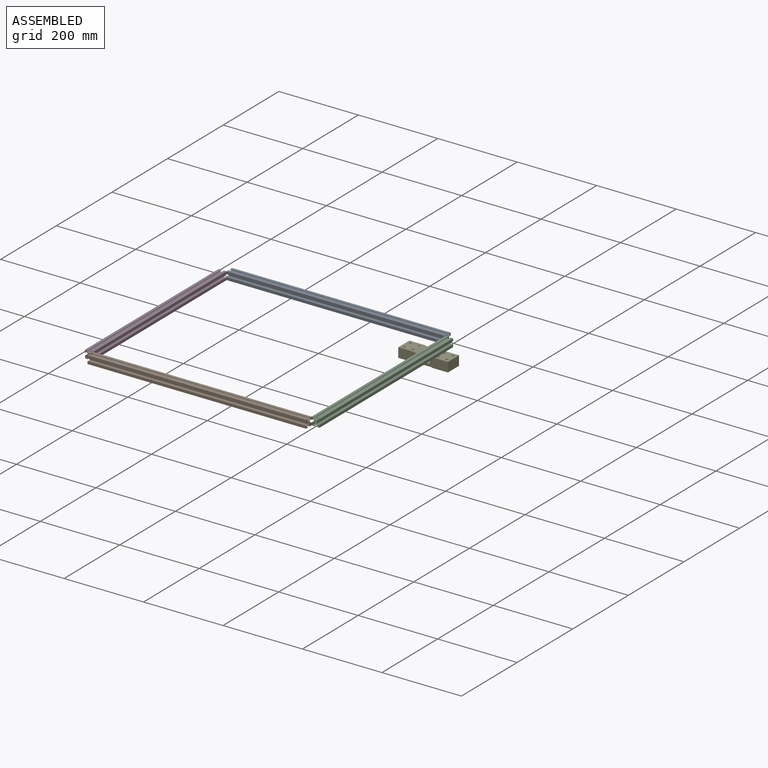
[diagram: assembled view]
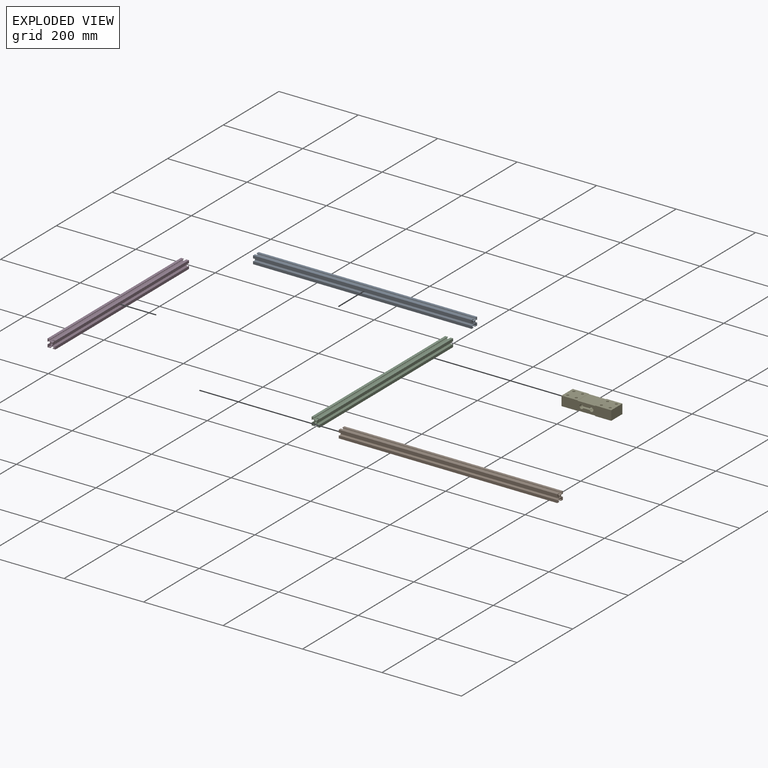
[diagram: exploded view]
GUIDED TOUR — MATED ASSEMBLY (Onshape document 4f19ccbfeccf9da13fca764b, AutoMate assembly 4f19ccbfeccf9da13fca764b_7826bdbd775224027a522f26_8079e58ffe7ddc799d03f3a0_default)

This assembly has 5 components, labeled P0..P4 below (a component is one placed occurrence of a part; the same part can appear more than once), held together by 3 mates. A mate is a constraint between two components; its type names the relative motion it leaves free:
  FASTENED — locks the two components together rigidly (no relative motion).
Axis/direction vectors are unit vectors and 'through' points are millimeter coordinates, both in the assembly's world frame.

MATES
  1. FASTENED "Fastened 3": P0 <-> P2, direction (1.000, 0.000, 0.000) through (66.45, 474.93, -6.66) mm
  2. FASTENED "Fastened 1": P1 <-> P3, direction (1.000, 0.000, 0.000) through (-483.55, -5.07, -6.66) mm
  3. FASTENED "Fastened 2": P3 <-> P0, direction (0.000, -1.000, 0.000) through (-483.55, 474.93, -6.66) mm

ASSEMBLY ORDER
  1. P2 — the base component [order verified]
  2. P1 [order verified]
  3. P3 [order verified]
  4. P0 [order verified]
  5. P4 [order verified]
Order-tag legend:
  [order verified] — this step's position reverses a verified removal order: the component was checked to insert without passing through the ones already placed.

Of the 5 components, 5 carry the full construction recipe — the FeatureScript program that regenerates the part's solid from scratch; the rest are supplied as boundary geometry only.
Each toured component is shown spotlighted twice — in the assembled view, then in the exploded view, where a leader line traces a displaced component back to its assembled socket (saturated green if recipe-attached, orange if geometry-only; every other component desaturated gray) — followed by its recipe or geometry summary and the mates that hold it.
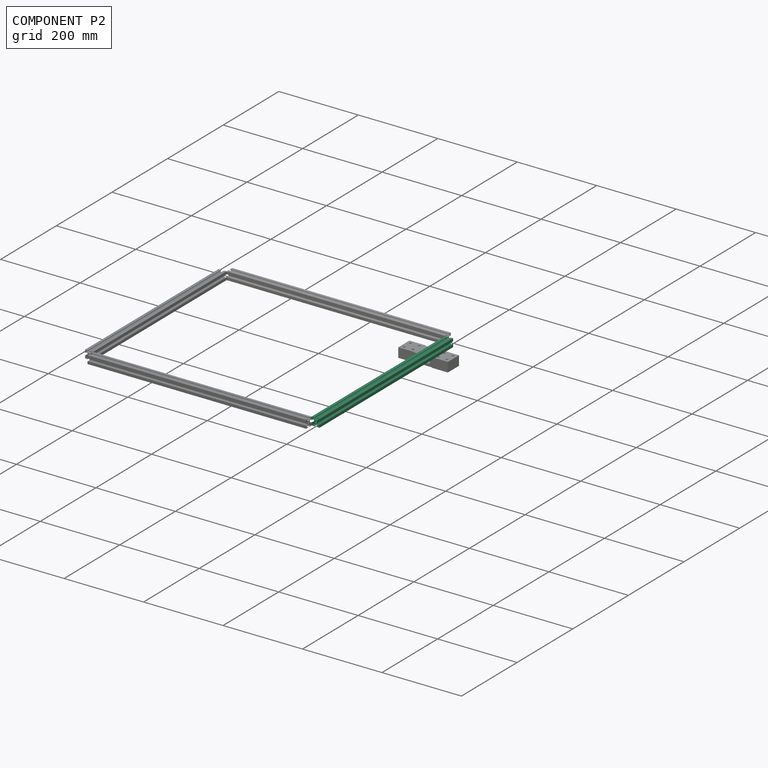
[diagram: component P2 — assembled]
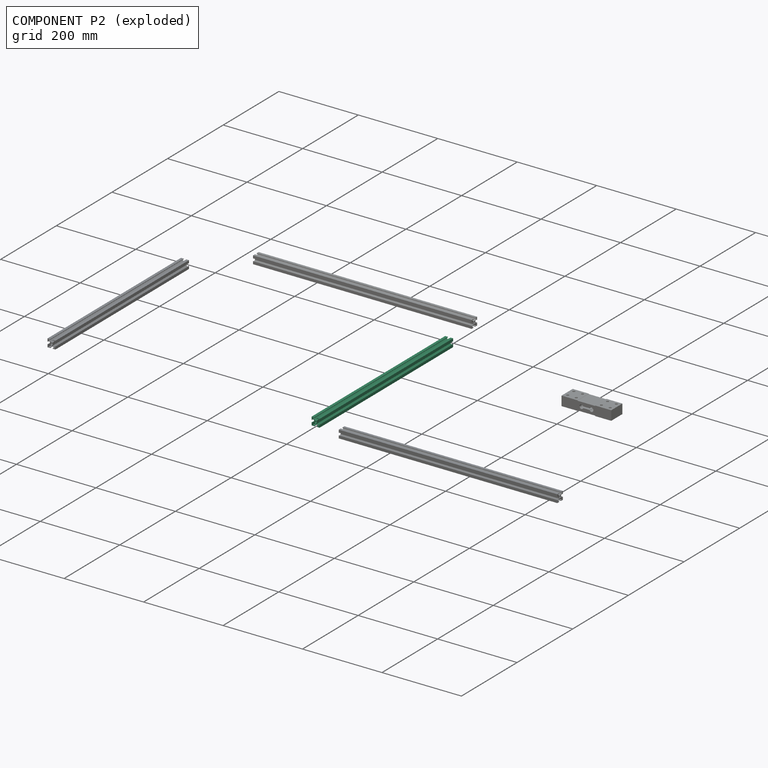
[diagram: component P2 — exploded]
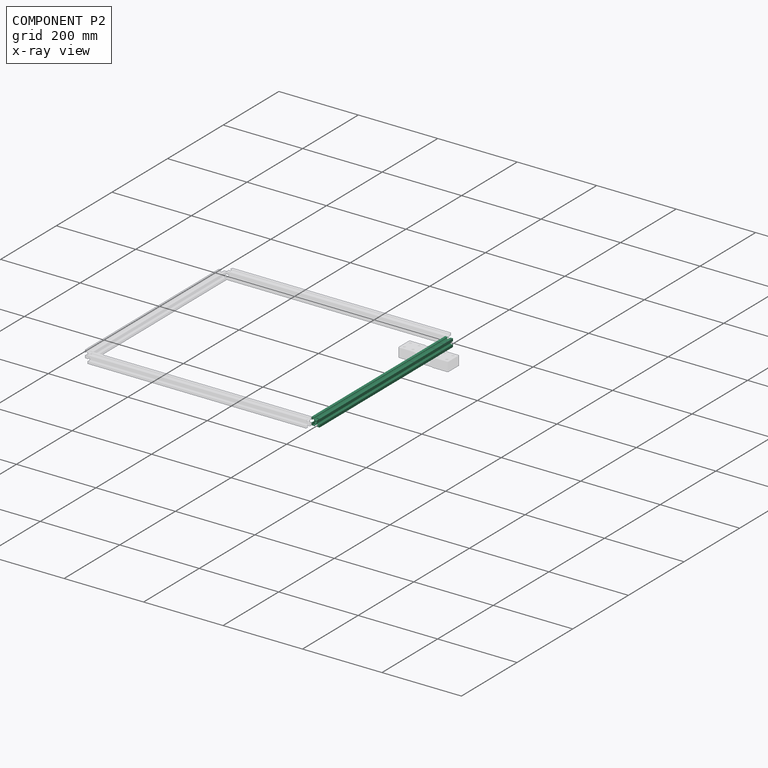
[diagram: component P2 — x-ray view]
COMPONENT P2 — recipe-attached (CADFS 00677635, mesh-verified: the recipe's output STEP matches this component's geometry to below the mesh-comparison resolution (tessellation chordal tolerance ~0.721 mm)).
Held by: FASTENED mate "Fastened 3" to P0.
Construction recipe (FeatureScript — the CAD program that rebuilds this solid; sketch coordinates are in the units given by the * unit suffixes, e.g. mm):

FeatureScript 1540;
import(path : "onshape/std/geometry.fs", version : "1540.0");
import(path : "onshape/std/common.fs", version : "1540.0");
const mm = millimeter;
const VERTEX = EntityType.VERTEX;
const EDGE = EntityType.EDGE;
const FACE = EntityType.FACE;
const BODY = EntityType.BODY;
function v(x, y){return vector(x, y);}
function OD(order){return orderDisambiguation(order);}
function OSD(set){return originalSetDisambiguation(set);}
function TD(topology){return topologyDisambiguation(topology);}
function TDD(query){return trueDependencyDisambiguation(query);}
function sQuery(a, b, c) {return sketchEntityQuery(a, b, c);}

annotation { "Feature Type Name" : "Feature", "Feature Type Description" : "" }
export const myFeature = defineFeature(function(context is Context, id is Id, definition is map)
    precondition{}
    {
        {
            var Q0;
            Q0=qCreatedBy(makeId("Top.planeOp"),FACE);
            var sketch = newSketch(context, id + "F0", { "sketchPlane" : qUnion([Q0])});
            skCircle(sketch, "E0", {"center": v(10, 10) * mm, "radius": 2.5 * mm});
            skLineSegment(sketch, "E1", {"start": v(0, 0) * mm, "end": v(10, 10) * mm, "construction": true});
            skLineSegment(sketch, "E2", {"start": v(1.4, 2.39) * mm, "end": v(1.4, 6.8) * mm});
            skLineSegment(sketch, "E3", {"start": v(1.4, 6.8) * mm, "end": v(0, 6.8) * mm});
            skLineSegment(sketch, "E4", {"start": v(0, 6.8) * mm, "end": v(0, 0) * mm});
            skLineSegment(sketch, "E5", {"start": v(7.49, 6.5) * mm, "end": v(2.39, 1.4) * mm});
            skLineSegment(sketch, "E6", {"start": v(2.39, 1.4) * mm, "end": v(6.8, 1.4) * mm});
            skLineSegment(sketch, "E7", {"start": v(6.8, 1.4) * mm, "end": v(6.8, 0) * mm});
            skLineSegment(sketch, "E8", {"start": v(6.8, 0) * mm, "end": v(0, 0) * mm});
            skLineSegment(sketch, "E9", {"start": v(10, 10) * mm, "end": v(20, 20) * mm, "construction": true});
            skLineSegment(sketch, "E10", {"start": v(10, 10) * mm, "end": v(0, 20) * mm, "construction": true});
            skLineSegment(sketch, "E11", {"start": v(10, 10) * mm, "end": v(20, 0) * mm, "construction": true});
            skLineSegment(sketch, "E12", {"start": v(1.4, 17.61) * mm, "end": v(6.5, 12.51) * mm});
            skLineSegment(sketch, "E13", {"start": v(1.4, 17.61) * mm, "end": v(1.4, 13.2) * mm});
            skLineSegment(sketch, "E14", {"start": v(1.4, 13.2) * mm, "end": v(0, 13.2) * mm});
            skLineSegment(sketch, "E15", {"start": v(0, 13.2) * mm, "end": v(0, 20) * mm});
            skLineSegment(sketch, "E16", {"start": v(7.49, 13.5) * mm, "end": v(2.39, 18.6) * mm});
            skLineSegment(sketch, "E17", {"start": v(2.39, 18.6) * mm, "end": v(6.8, 18.6) * mm});
            skLineSegment(sketch, "E18", {"start": v(6.8, 18.6) * mm, "end": v(6.8, 20) * mm});
            skLineSegment(sketch, "E19", {"start": v(6.8, 20) * mm, "end": v(0, 20) * mm});
            skLineSegment(sketch, "E20", {"start": v(12.51, 13.5) * mm, "end": v(17.61, 18.6) * mm});
            skLineSegment(sketch, "E21", {"start": v(17.61, 18.6) * mm, "end": v(13.2, 18.6) * mm});
            skLineSegment(sketch, "E22", {"start": v(13.2, 18.6) * mm, "end": v(13.2, 20) * mm});
            skLineSegment(sketch, "E23", {"start": v(13.2, 20) * mm, "end": v(20, 20) * mm});
            skLineSegment(sketch, "E24", {"start": v(13.5, 12.51) * mm, "end": v(18.6, 17.61) * mm});
            skLineSegment(sketch, "E25", {"start": v(18.6, 17.61) * mm, "end": v(18.6, 13.2) * mm});
            skLineSegment(sketch, "E26", {"start": v(18.6, 13.2) * mm, "end": v(20, 13.2) * mm});
            skLineSegment(sketch, "E27", {"start": v(20, 13.2) * mm, "end": v(20, 20) * mm});
            skLineSegment(sketch, "E28", {"start": v(18.6, 2.39) * mm, "end": v(18.6, 6.8) * mm});
            skLineSegment(sketch, "E29", {"start": v(18.6, 6.8) * mm, "end": v(20, 6.8) * mm});
            skLineSegment(sketch, "E30", {"start": v(20, 6.8) * mm, "end": v(20, 0) * mm});
            skLineSegment(sketch, "E31", {"start": v(12.51, 6.5) * mm, "end": v(17.61, 1.4) * mm});
            skLineSegment(sketch, "E32", {"start": v(17.61, 1.4) * mm, "end": v(13.2, 1.4) * mm});
            skLineSegment(sketch, "E33", {"start": v(13.2, 1.4) * mm, "end": v(13.2, 0) * mm});
            skLineSegment(sketch, "E34", {"start": v(13.2, 0) * mm, "end": v(20, 0) * mm});
            skLineSegment(sketch, "E35", {"start": v(12.51, 6.5) * mm, "end": v(7.49, 6.5) * mm});
            skLineSegment(sketch, "E36", {"start": v(7.49, 13.5) * mm, "end": v(12.51, 13.5) * mm});
            skLineSegment(sketch, "E37", {"start": v(10, 10) * mm, "end": v(10, 0) * mm, "construction": true});
            skLineSegment(sketch, "E38", {"start": v(10, 10) * mm, "end": v(18.77, 10) * mm, "construction": true});
            skLineSegment(sketch, "E39", {"start": v(10, 10) * mm, "end": v(10, 20.74) * mm, "construction": true});
            skLineSegment(sketch, "E40", {"start": v(10, 10) * mm, "end": v(0, 10) * mm, "construction": true});
            skLineSegment(sketch, "E41.bottom", {"start": v(0, 0) * mm, "end": v(20, 0) * mm, "construction": true});
            skLineSegment(sketch, "E41.top", {"start": v(0, 20) * mm, "end": v(20, 20) * mm, "construction": true});
            skLineSegment(sketch, "E41.left", {"start": v(0, 0) * mm, "end": v(0, 20) * mm, "construction": true});
            skLineSegment(sketch, "E41.right", {"start": v(20, 0) * mm, "end": v(20, 20) * mm, "construction": true});
            skLineSegment(sketch, "E42", {"start": v(18.6, 2.39) * mm, "end": v(13.5, 7.49) * mm});
            skLineSegment(sketch, "E43", {"start": v(13.5, 7.49) * mm, "end": v(13.5, 12.51) * mm});
            skLineSegment(sketch, "E44", {"start": v(1.4, 2.39) * mm, "end": v(6.5, 7.62) * mm});
            skLineSegment(sketch, "E45", {"start": v(6.5, 7.62) * mm, "end": v(6.5, 12.51) * mm});
            skSolve(sketch);
        }
        {
            var Q0;
            Q0=makeQuery(id+"F0.imprint","IMPRINT",FACE,{"disambiguationData":[TD([[makeQuery(id+"F0.imprint","IMPRINT",EDGE,{"derivedFrom":sQuery(id+"F0.wireOp",EDGE,"E0")}),-1.0]])]});
            extrude(context, id + "F1", {"entities" : qUnion([Q0]), "depth" : 480 * mm, "offsetDistance" : 25 * mm});
        }
    });
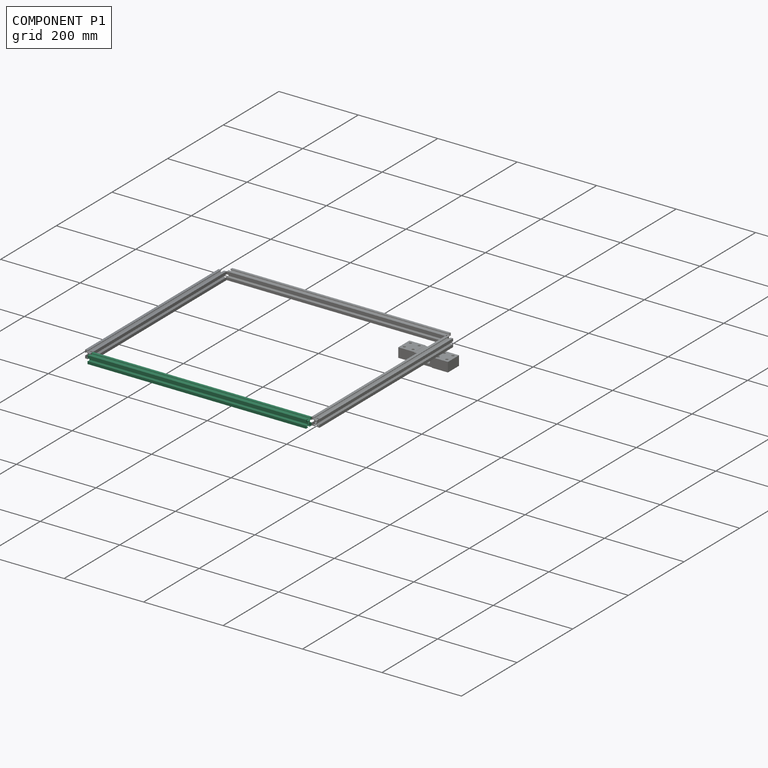
[diagram: component P1 — assembled]
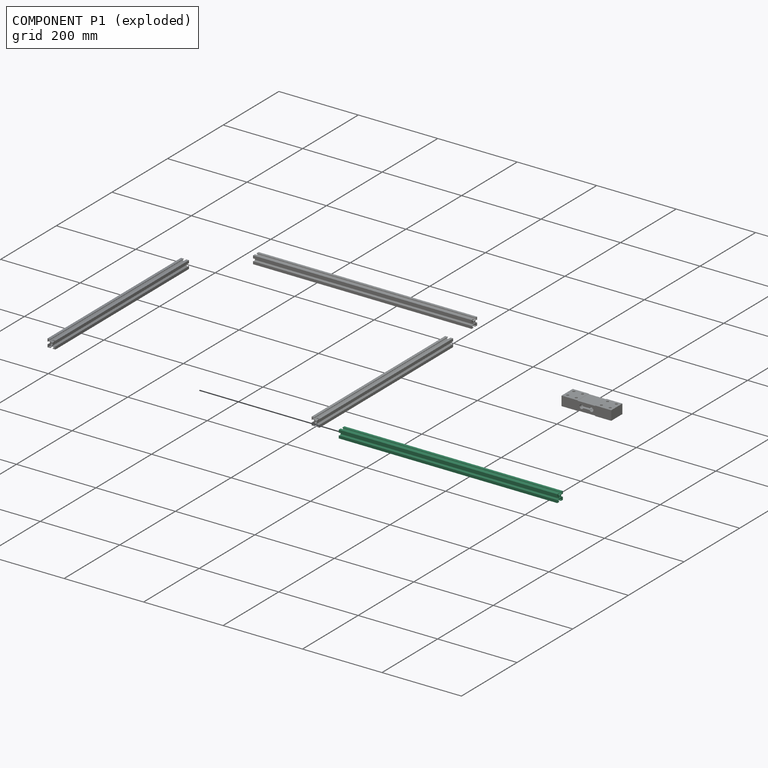
[diagram: component P1 — exploded]
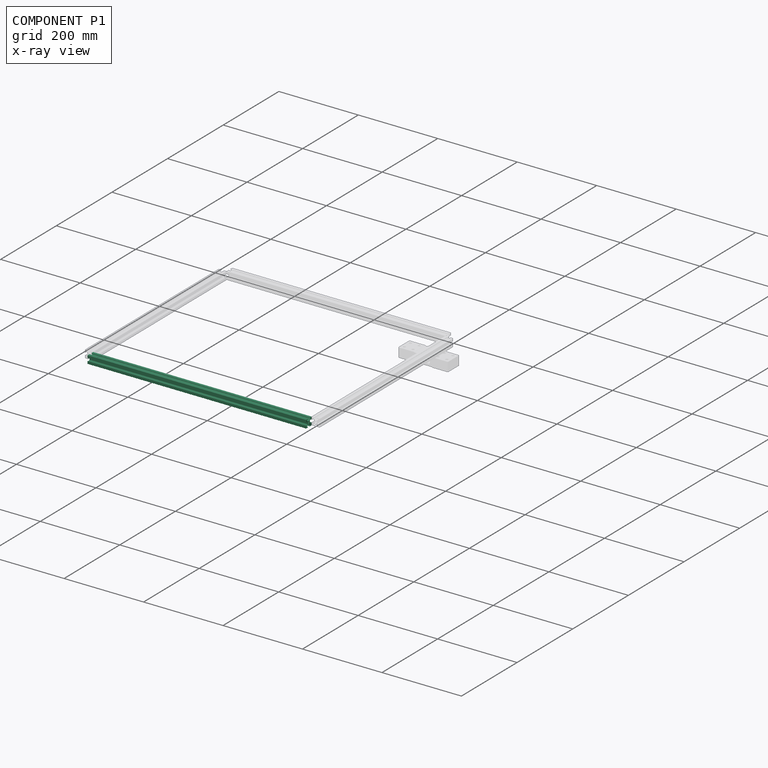
[diagram: component P1 — x-ray view]
COMPONENT P1 — same part as P0 (CADFS 00677638); its construction recipe is shown at P0.
Held by: FASTENED mate "Fastened 1" to P3.
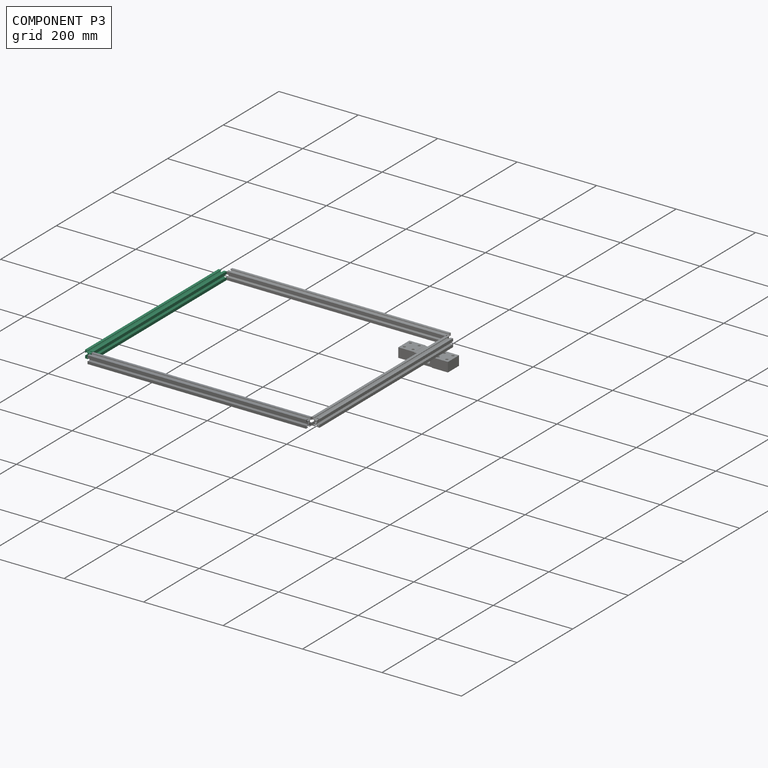
[diagram: component P3 — assembled]
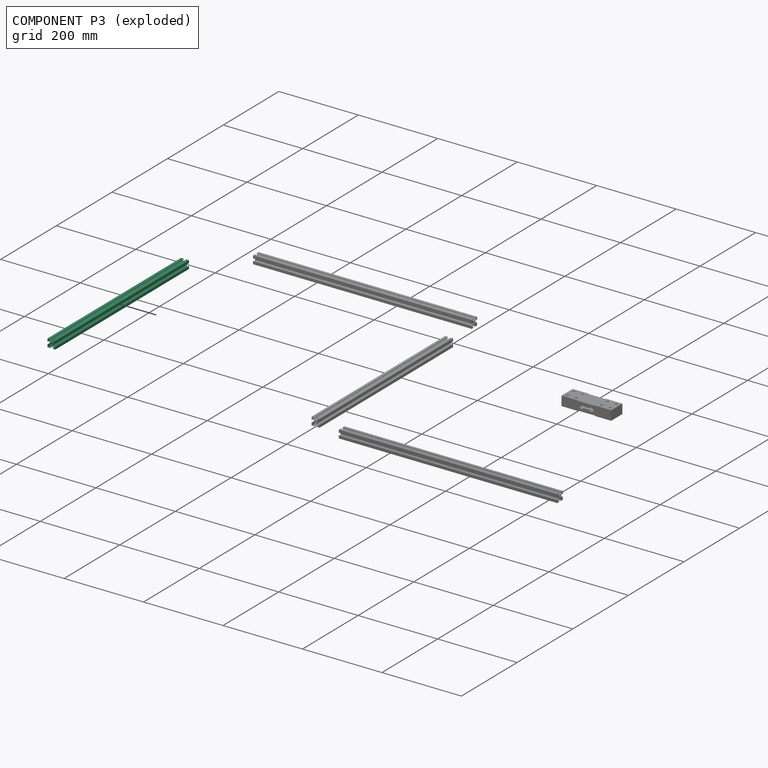
[diagram: component P3 — exploded]
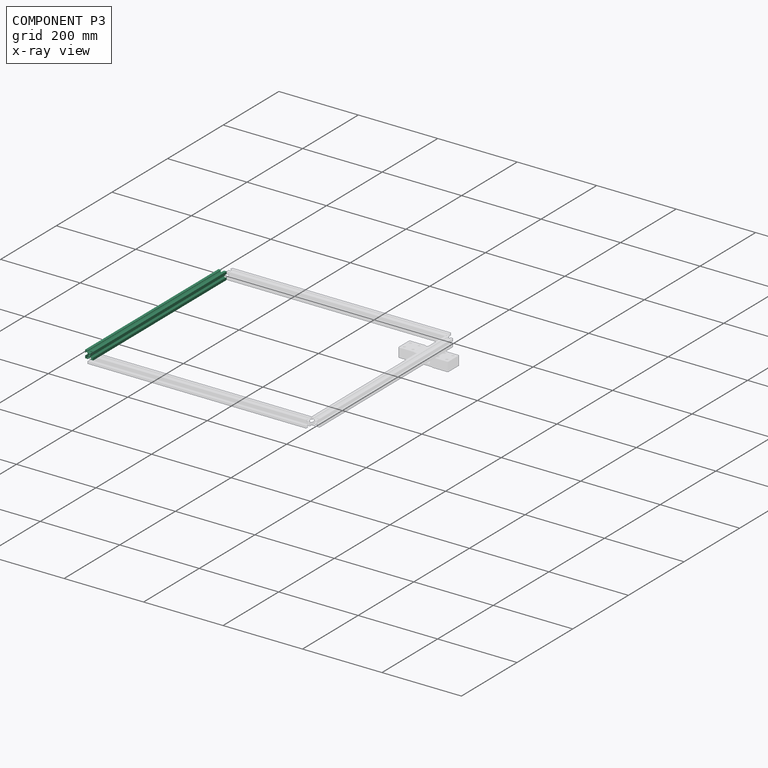
[diagram: component P3 — x-ray view]
COMPONENT P3 — same part as P2 (CADFS 00677635); its construction recipe is shown at P2.
Held by: FASTENED mate "Fastened 1" to P1; FASTENED mate "Fastened 2" to P0.
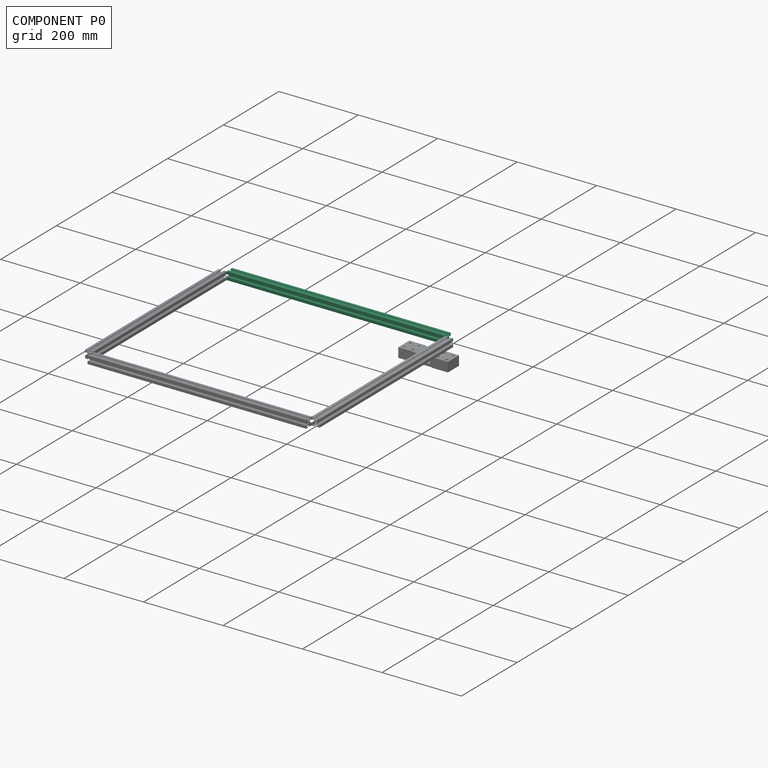
[diagram: component P0 — assembled]
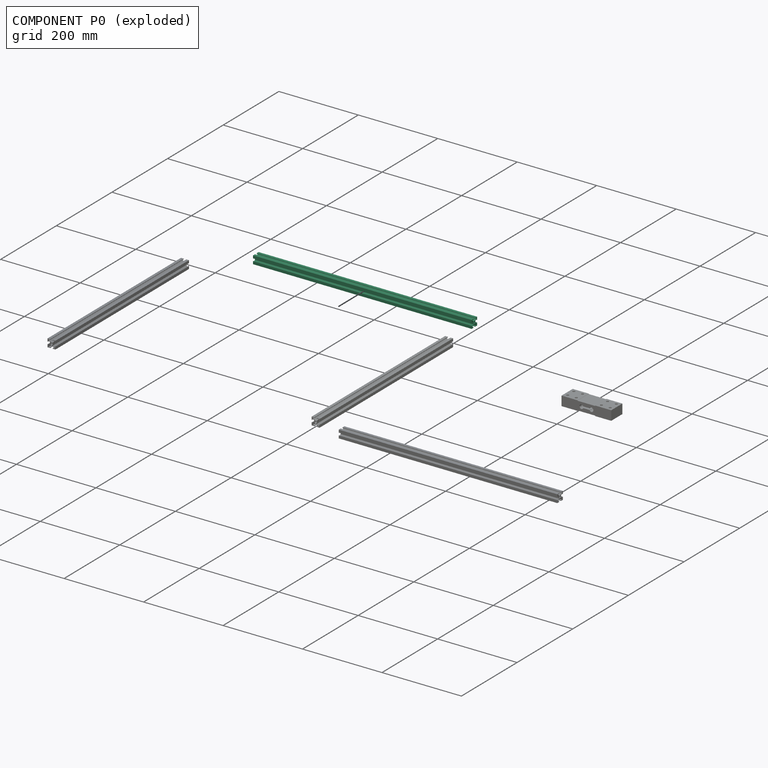
[diagram: component P0 — exploded]
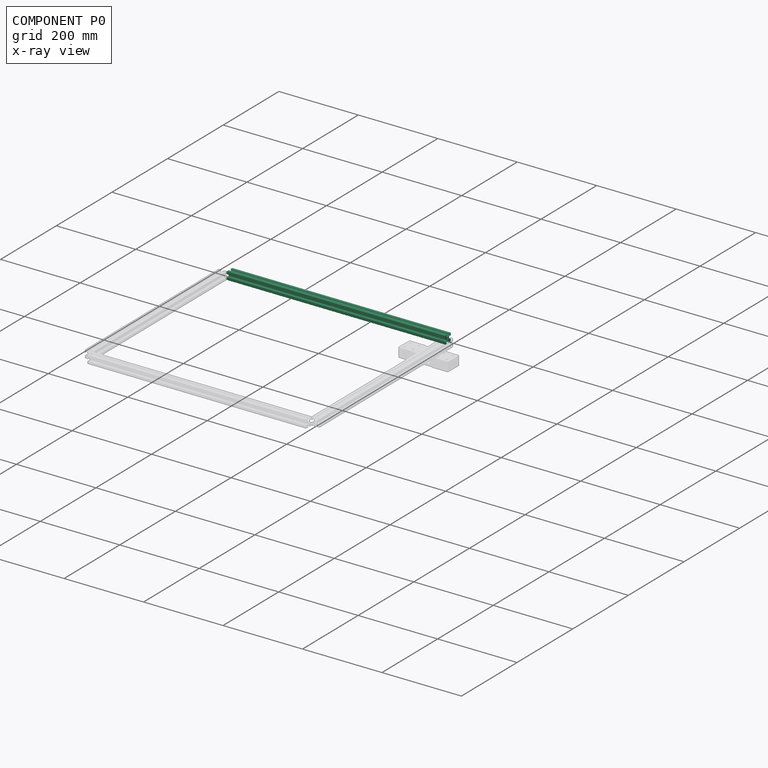
[diagram: component P0 — x-ray view]
COMPONENT P0 — recipe-attached (CADFS 00677638, mesh-verified: the recipe's output STEP matches this component's geometry to below the mesh-comparison resolution (tessellation chordal tolerance ~0.826 mm)).
Held by: FASTENED mate "Fastened 3" to P2; FASTENED mate "Fastened 2" to P3.
Construction recipe (FeatureScript — the CAD program that rebuilds this solid; sketch coordinates are in the units given by the * unit suffixes, e.g. mm):

FeatureScript 1540;
import(path : "onshape/std/geometry.fs", version : "1540.0");
import(path : "onshape/std/common.fs", version : "1540.0");
const mm = millimeter;
const VERTEX = EntityType.VERTEX;
const EDGE = EntityType.EDGE;
const FACE = EntityType.FACE;
const BODY = EntityType.BODY;
function v(x, y){return vector(x, y);}
function OD(order){return orderDisambiguation(order);}
function OSD(set){return originalSetDisambiguation(set);}
function TD(topology){return topologyDisambiguation(topology);}
function TDD(query){return trueDependencyDisambiguation(query);}
function sQuery(a, b, c) {return sketchEntityQuery(a, b, c);}

annotation { "Feature Type Name" : "Feature", "Feature Type Description" : "" }
export const myFeature = defineFeature(function(context is Context, id is Id, definition is map)
    precondition{}
    {
        {
            var Q0;
            Q0=qCreatedBy(makeId("Top.planeOp"),FACE);
            var sketch = newSketch(context, id + "F0", { "sketchPlane" : qUnion([Q0])});
            skCircle(sketch, "E0", {"center": v(10, 10) * mm, "radius": 2.5 * mm});
            skLineSegment(sketch, "E1", {"start": v(0, 0) * mm, "end": v(10, 10) * mm, "construction": true});
            skLineSegment(sketch, "E2", {"start": v(1.4, 2.39) * mm, "end": v(1.4, 6.8) * mm});
            skLineSegment(sketch, "E3", {"start": v(1.4, 6.8) * mm, "end": v(0, 6.8) * mm});
            skLineSegment(sketch, "E4", {"start": v(0, 6.8) * mm, "end": v(0, 0) * mm});
            skLineSegment(sketch, "E5", {"start": v(7.49, 6.5) * mm, "end": v(2.39, 1.4) * mm});
            skLineSegment(sketch, "E6", {"start": v(2.39, 1.4) * mm, "end": v(6.8, 1.4) * mm});
            skLineSegment(sketch, "E7", {"start": v(6.8, 1.4) * mm, "end": v(6.8, 0) * mm});
            skLineSegment(sketch, "E8", {"start": v(6.8, 0) * mm, "end": v(0, 0) * mm});
            skLineSegment(sketch, "E9", {"start": v(10, 10) * mm, "end": v(20, 20) * mm, "construction": true});
            skLineSegment(sketch, "E10", {"start": v(10, 10) * mm, "end": v(0, 20) * mm, "construction": true});
            skLineSegment(sketch, "E11", {"start": v(10, 10) * mm, "end": v(20, 0) * mm, "construction": true});
            skLineSegment(sketch, "E12", {"start": v(1.4, 17.61) * mm, "end": v(6.5, 12.51) * mm});
            skLineSegment(sketch, "E13", {"start": v(1.4, 17.61) * mm, "end": v(1.4, 13.2) * mm});
            skLineSegment(sketch, "E14", {"start": v(1.4, 13.2) * mm, "end": v(0, 13.2) * mm});
            skLineSegment(sketch, "E15", {"start": v(0, 13.2) * mm, "end": v(0, 20) * mm});
            skLineSegment(sketch, "E16", {"start": v(7.49, 13.5) * mm, "end": v(2.39, 18.6) * mm});
            skLineSegment(sketch, "E17", {"start": v(2.39, 18.6) * mm, "end": v(6.8, 18.6) * mm});
            skLineSegment(sketch, "E18", {"start": v(6.8, 18.6) * mm, "end": v(6.8, 20) * mm});
            skLineSegment(sketch, "E19", {"start": v(6.8, 20) * mm, "end": v(0, 20) * mm});
            skLineSegment(sketch, "E20", {"start": v(12.51, 13.5) * mm, "end": v(17.61, 18.6) * mm});
            skLineSegment(sketch, "E21", {"start": v(17.61, 18.6) * mm, "end": v(13.2, 18.6) * mm});
            skLineSegment(sketch, "E22", {"start": v(13.2, 18.6) * mm, "end": v(13.2, 20) * mm});
            skLineSegment(sketch, "E23", {"start": v(13.2, 20) * mm, "end": v(20, 20) * mm});
            skLineSegment(sketch, "E24", {"start": v(13.5, 12.51) * mm, "end": v(18.6, 17.61) * mm});
            skLineSegment(sketch, "E25", {"start": v(18.6, 17.61) * mm, "end": v(18.6, 13.2) * mm});
            skLineSegment(sketch, "E26", {"start": v(18.6, 13.2) * mm, "end": v(20, 13.2) * mm});
            skLineSegment(sketch, "E27", {"start": v(20, 13.2) * mm, "end": v(20, 20) * mm});
            skLineSegment(sketch, "E28", {"start": v(18.6, 2.39) * mm, "end": v(18.6, 6.8) * mm});
            skLineSegment(sketch, "E29", {"start": v(18.6, 6.8) * mm, "end": v(20, 6.8) * mm});
            skLineSegment(sketch, "E30", {"start": v(20, 6.8) * mm, "end": v(20, 0) * mm});
            skLineSegment(sketch, "E31", {"start": v(12.51, 6.5) * mm, "end": v(17.61, 1.4) * mm});
            skLineSegment(sketch, "E32", {"start": v(17.61, 1.4) * mm, "end": v(13.2, 1.4) * mm});
            skLineSegment(sketch, "E33", {"start": v(13.2, 1.4) * mm, "end": v(13.2, 0) * mm});
            skLineSegment(sketch, "E34", {"start": v(13.2, 0) * mm, "end": v(20, 0) * mm});
            skLineSegment(sketch, "E35", {"start": v(12.51, 6.5) * mm, "end": v(7.49, 6.5) * mm});
            skLineSegment(sketch, "E36", {"start": v(7.49, 13.5) * mm, "end": v(12.51, 13.5) * mm});
            skLineSegment(sketch, "E37", {"start": v(10, 10) * mm, "end": v(10, 0) * mm, "construction": true});
            skLineSegment(sketch, "E38", {"start": v(10, 10) * mm, "end": v(18.77, 10) * mm, "construction": true});
            skLineSegment(sketch, "E39", {"start": v(10, 10) * mm, "end": v(10, 20.74) * mm, "construction": true});
            skLineSegment(sketch, "E40", {"start": v(10, 10) * mm, "end": v(0, 10) * mm, "construction": true});
            skLineSegment(sketch, "E41.bottom", {"start": v(0, 0) * mm, "end": v(20, 0) * mm, "construction": true});
            skLineSegment(sketch, "E41.top", {"start": v(0, 20) * mm, "end": v(20, 20) * mm, "construction": true});
            skLineSegment(sketch, "E41.left", {"start": v(0, 0) * mm, "end": v(0, 20) * mm, "construction": true});
            skLineSegment(sketch, "E41.right", {"start": v(20, 0) * mm, "end": v(20, 20) * mm, "construction": true});
            skLineSegment(sketch, "E42", {"start": v(18.6, 2.39) * mm, "end": v(13.5, 7.49) * mm});
            skLineSegment(sketch, "E43", {"start": v(13.5, 7.49) * mm, "end": v(13.5, 12.51) * mm});
            skLineSegment(sketch, "E44", {"start": v(1.4, 2.39) * mm, "end": v(6.5, 7.62) * mm});
            skLineSegment(sketch, "E45", {"start": v(6.5, 7.62) * mm, "end": v(6.5, 12.51) * mm});
            skSolve(sketch);
        }
        {
            var Q0;
            Q0=makeQuery(id+"F0.imprint","IMPRINT",FACE,{"disambiguationData":[TD([[makeQuery(id+"F0.imprint","IMPRINT",EDGE,{"derivedFrom":sQuery(id+"F0.wireOp",EDGE,"E0")}),-1.0]])]});
            extrude(context, id + "F1", {"entities" : qUnion([Q0]), "depth" : 550 * mm, "offsetDistance" : 25 * mm});
        }
    });
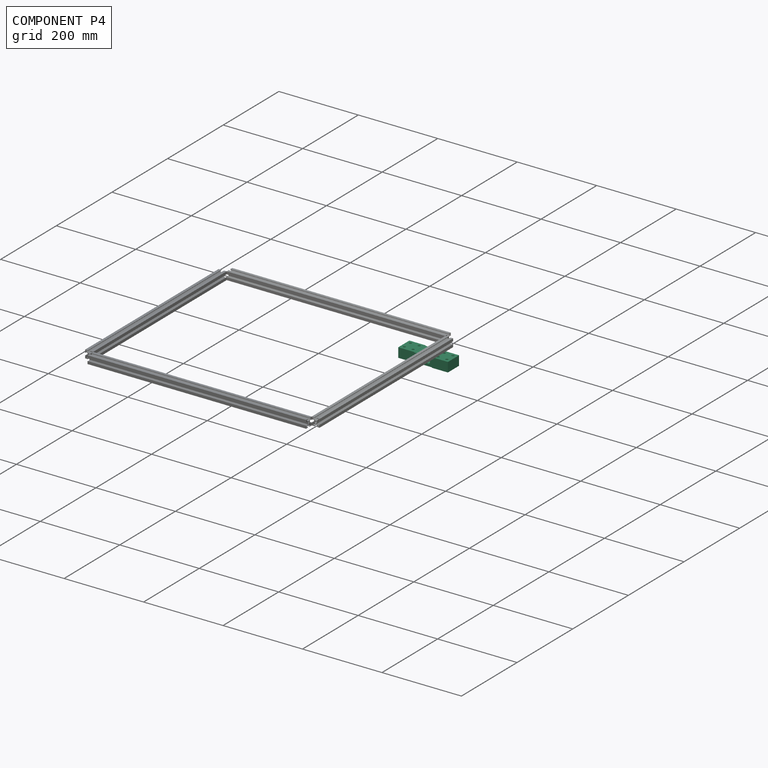
[diagram: component P4 — assembled]
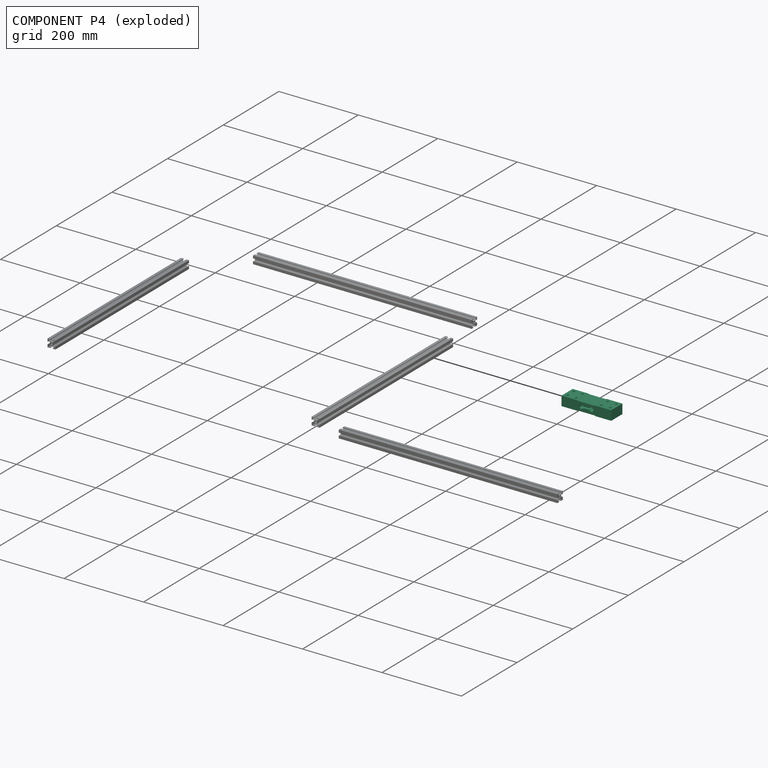
[diagram: component P4 — exploded]
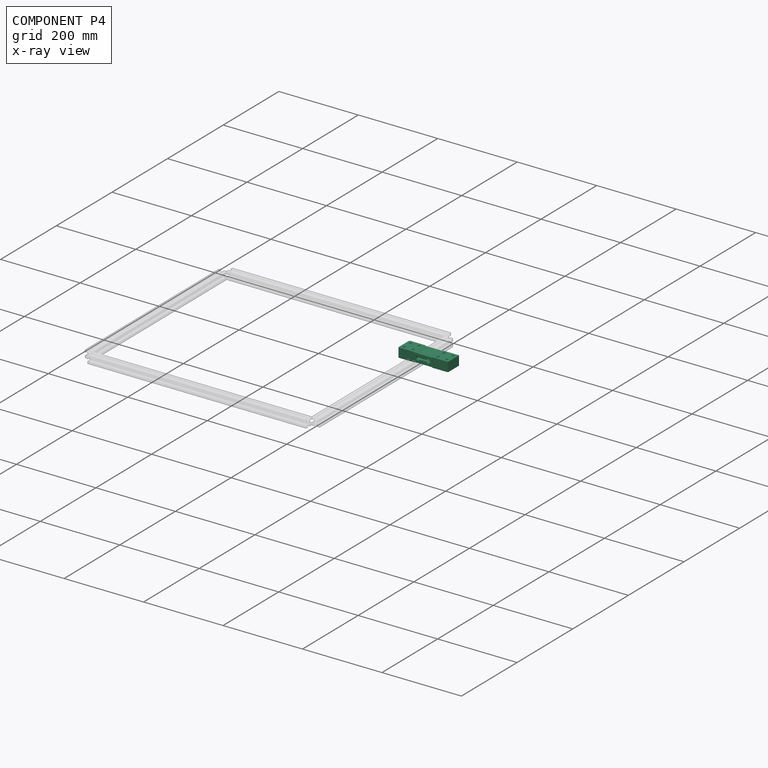
[diagram: component P4 — x-ray view]
COMPONENT P4 — recipe-attached (CADFS 00677639, mesh-verified: the recipe's output STEP matches this component's geometry to below the mesh-comparison resolution (tessellation chordal tolerance ~0.2 mm)).
Held by: no mates (free).
Construction recipe (FeatureScript — the CAD program that rebuilds this solid; sketch coordinates are in the units given by the * unit suffixes, e.g. mm):

FeatureScript 1540;
import(path : "onshape/std/geometry.fs", version : "1540.0");
import(path : "onshape/std/common.fs", version : "1540.0");
const mm = millimeter;
const VERTEX = EntityType.VERTEX;
const EDGE = EntityType.EDGE;
const FACE = EntityType.FACE;
const BODY = EntityType.BODY;
function v(x, y){return vector(x, y);}
function OD(order){return orderDisambiguation(order);}
function OSD(set){return originalSetDisambiguation(set);}
function TD(topology){return topologyDisambiguation(topology);}
function TDD(query){return trueDependencyDisambiguation(query);}
function sQuery(a, b, c) {return sketchEntityQuery(a, b, c);}

annotation { "Feature Type Name" : "Feature", "Feature Type Description" : "" }
export const myFeature = defineFeature(function(context is Context, id is Id, definition is map)
    precondition{}
    {
        {
            var Q0;
            Q0=qCreatedBy(makeId("Top.planeOp"),FACE);
            var sketch = newSketch(context, id + "F0", { "sketchPlane" : qUnion([Q0])});
            skLineSegment(sketch, "E0.bottom", {"start": v(0, 0) * mm, "end": v(125, 0) * mm});
            skLineSegment(sketch, "E0.top", {"start": v(0, 40) * mm, "end": v(125, 40) * mm});
            skLineSegment(sketch, "E0.left", {"start": v(0, 0) * mm, "end": v(0, 40) * mm});
            skLineSegment(sketch, "E0.right", {"start": v(125, 0) * mm, "end": v(125, 40) * mm});
            skCircle(sketch, "E1", {"center": v(116, 9) * mm, "radius": 3 * mm});
            skCircle(sketch, "E2.0.1.0", {"center": v(116, 31) * mm, "radius": 3 * mm});
            skCircle(sketch, "E2.1.0.0", {"center": v(94, 9) * mm, "radius": 3 * mm});
            skCircle(sketch, "E2.1.1.0", {"center": v(94, 31) * mm, "radius": 3 * mm});
            skLineSegment(sketch, "E2.direction1", {"start": v(116, 9) * mm, "end": v(94, 9) * mm, "construction": true});
            skLineSegment(sketch, "E2.direction2", {"start": v(116, 9) * mm, "end": v(116, 31) * mm, "construction": true});
            skCircle(sketch, "E3", {"center": v(9, 9) * mm, "radius": 3 * mm});
            skCircle(sketch, "E4.0.1.0", {"center": v(9, 31) * mm, "radius": 3 * mm});
            skCircle(sketch, "E4.1.0.0", {"center": v(31, 9) * mm, "radius": 3 * mm});
            skCircle(sketch, "E4.1.1.0", {"center": v(31, 31) * mm, "radius": 3 * mm});
            skLineSegment(sketch, "E4.direction1", {"start": v(9, 9) * mm, "end": v(31, 9) * mm, "construction": true});
            skLineSegment(sketch, "E4.direction2", {"start": v(9, 9) * mm, "end": v(9, 31) * mm, "construction": true});
            skSolve(sketch);
        }
        {
            var Q0;
            Q0=makeQuery(id+"F0.imprint","IMPRINT",FACE,{"disambiguationData":[TD([[makeQuery(id+"F0.imprint","IMPRINT",EDGE,{"derivedFrom":sQuery(id+"F0.wireOp",EDGE,"E0.bottom")}),1.0]])]});
            extrude(context, id + "F1", {"entities" : qUnion([Q0]), "depth" : 24 * mm, "offsetDistance" : 25 * mm});
        }
        {
            var Q0;
            Q0=makeQuery(id+"F1.opExtrude","SWEPT_FACE",FACE,{"disambiguationData":[OSD([sQuery(id+"F0.wireOp",EDGE,"E0.bottom")])]});
            var sketch = newSketch(context, id + "F2", { "sketchPlane" : qUnion([Q0])});
            skCircle(sketch, "E5", {"center": v(50, 12) * mm, "radius": 5 * mm});
            skCircle(sketch, "E6", {"center": v(75, 12) * mm, "radius": 5 * mm});
            skLineSegment(sketch, "E7.bottom", {"start": v(54, 14) * mm, "end": v(71, 14) * mm});
            skLineSegment(sketch, "E7.top", {"start": v(54, 10) * mm, "end": v(71, 10) * mm});
            skLineSegment(sketch, "E7.left", {"start": v(54, 14) * mm, "end": v(54, 10) * mm});
            skLineSegment(sketch, "E7.right", {"start": v(71, 14) * mm, "end": v(71, 10) * mm});
            skSolve(sketch);
        }
        {
            var Q0;
            {var subQ5=sQuery(id+"F2.wireOp",EDGE,"E7.left");Q0=makeQuery(id+"F2.imprint","IMPRINT",FACE,{"disambiguationData":[TD([[makeQuery(id+"F2.imprint","IMPRINT",EDGE,{"derivedFrom":subQ5}),-1.0]])]});}
            var Q1;
            {var subQ5=sQuery(id+"F2.wireOp",EDGE,"E7.left");Q1=makeQuery(id+"F2.imprint","IMPRINT",FACE,{"disambiguationData":[TD([[makeQuery(id+"F2.imprint","IMPRINT",EDGE,{"derivedFrom":subQ5}),1.0]])]});}
            var Q2;
            {var subQ0=sQuery(id+"F2.wireOp",EDGE,"E7.bottom");var subQ1=sQuery(id+"F2.wireOp",EDGE,"E5");var subQ2=makeQuery(id+"F2.imprint","INTERSECT",VERTEX,{"derivedFrom":[subQ1,subQ0]});Q2=makeQuery(id+"F2.imprint","IMPRINT",FACE,{"disambiguationData":[TD([[makeQuery(id+"F2.imprint","IMPRINT",EDGE,{"disambiguationData":[TD([[subQ2,1.0]])],"derivedFrom":subQ1}),-1.0]])]});}
            var Q3;
            {var subQ5=sQuery(id+"F2.wireOp",EDGE,"E7.right");Q3=makeQuery(id+"F2.imprint","IMPRINT",FACE,{"disambiguationData":[TD([[makeQuery(id+"F2.imprint","IMPRINT",EDGE,{"derivedFrom":subQ5}),-1.0]])]});}
            var Q4;
            {var subQ5=sQuery(id+"F2.wireOp",EDGE,"E7.right");Q4=makeQuery(id+"F2.imprint","IMPRINT",FACE,{"disambiguationData":[TD([[makeQuery(id+"F2.imprint","IMPRINT",EDGE,{"derivedFrom":subQ5}),1.0]])]});}
            extrude(context, id + "F3", {"entities" : qUnion([Q0, Q1, Q2, Q3, Q4]), "operationType" : NewBodyOperationType.REMOVE, "oppositeDirection" : true, "depth" : 45 * mm, "offsetDistance" : 25 * mm});
        }
        {
            var Q0;
            Q0=makeQuery(id+"F1.opExtrude","CAP_FACE",FACE,{"disambiguationData":[OSD([sQuery(id+"F0.wireOp",EDGE,"E0.bottom"),sQuery(id+"F0.wireOp",EDGE,"E0.top"),sQuery(id+"F0.wireOp",EDGE,"E0.left"),sQuery(id+"F0.wireOp",EDGE,"E0.right"),sQuery(id+"F0.wireOp",EDGE,"E1"),sQuery(id+"F0.wireOp",EDGE,"E2.0.1.0"),sQuery(id+"F0.wireOp",EDGE,"E2.1.0.0"),sQuery(id+"F0.wireOp",EDGE,"E2.1.1.0"),sQuery(id+"F0.wireOp",EDGE,"E3"),sQuery(id+"F0.wireOp",EDGE,"E4.0.1.0"),sQuery(id+"F0.wireOp",EDGE,"E4.1.0.0"),sQuery(id+"F0.wireOp",EDGE,"E4.1.1.0")])],"isStart":false});
            var sketch = newSketch(context, id + "F4", { "sketchPlane" : qUnion([Q0])});
            skLineSegment(sketch, "E8.bottom", {"start": v(40, 40) * mm, "end": v(85, 40) * mm});
            skLineSegment(sketch, "E8.top", {"start": v(40, 0) * mm, "end": v(85, 0) * mm});
            skLineSegment(sketch, "E8.left", {"start": v(40, 40) * mm, "end": v(40, 0) * mm});
            skLineSegment(sketch, "E8.right", {"start": v(85, 40) * mm, "end": v(85, 0) * mm});
            skSolve(sketch);
        }
        {
            var Q0;
            Q0=makeQuery(id+"F4.imprint","IMPRINT",FACE,{"disambiguationData":[TD([[makeQuery(id+"F4.imprint","IMPRINT",EDGE,{"derivedFrom":sQuery(id+"F4.wireOp",EDGE,"E8.bottom")}),-1.0]])]});
            extrude(context, id + "F5", {"entities" : qUnion([Q0]), "operationType" : NewBodyOperationType.REMOVE, "oppositeDirection" : true, "depth" : 1 * mm, "offsetDistance" : 25 * mm});
        }
        {
            var Q0;
            Q0=makeQuery(id+"F1.opExtrude","CAP_FACE",FACE,{"disambiguationData":[OSD([sQuery(id+"F0.wireOp",EDGE,"E0.bottom"),sQuery(id+"F0.wireOp",EDGE,"E0.top"),sQuery(id+"F0.wireOp",EDGE,"E0.left"),sQuery(id+"F0.wireOp",EDGE,"E0.right"),sQuery(id+"F0.wireOp",EDGE,"E1"),sQuery(id+"F0.wireOp",EDGE,"E2.0.1.0"),sQuery(id+"F0.wireOp",EDGE,"E2.1.0.0"),sQuery(id+"F0.wireOp",EDGE,"E2.1.1.0"),sQuery(id+"F0.wireOp",EDGE,"E3"),sQuery(id+"F0.wireOp",EDGE,"E4.0.1.0"),sQuery(id+"F0.wireOp",EDGE,"E4.1.0.0"),sQuery(id+"F0.wireOp",EDGE,"E4.1.1.0")])],"isStart":true});
            var sketch = newSketch(context, id + "F6", { "sketchPlane" : qUnion([Q0])});
            skLineSegment(sketch, "E9.bottom", {"start": v(40, 0) * mm, "end": v(85, 0) * mm});
            skLineSegment(sketch, "E9.top", {"start": v(40, -40) * mm, "end": v(85, -40) * mm});
            skLineSegment(sketch, "E9.left", {"start": v(40, 0) * mm, "end": v(40, -40) * mm});
            skLineSegment(sketch, "E9.right", {"start": v(85, 0) * mm, "end": v(85, -40) * mm});
            skSolve(sketch);
        }
        {
            var Q0;
            Q0=makeQuery(id+"F6.imprint","IMPRINT",FACE,{"disambiguationData":[TD([[makeQuery(id+"F6.imprint","IMPRINT",EDGE,{"derivedFrom":sQuery(id+"F6.wireOp",EDGE,"E9.bottom")}),-1.0]])]});
            extrude(context, id + "F7", {"entities" : qUnion([Q0]), "operationType" : NewBodyOperationType.REMOVE, "oppositeDirection" : true, "depth" : 1 * mm, "offsetDistance" : 25 * mm});
        }
        {
            var Q0;
            Q0=makeQuery(id+"F7.boolean.opBoolean","COPY",EDGE,{"derivedFrom":makeQuery(id+"F7.opExtrude","CAP_EDGE",EDGE,{"disambiguationData":[OSD([sQuery(id+"F6.wireOp",EDGE,"E9.left")])],"isStart":false})});
            var Q1;
            Q1=makeQuery(id+"F7.boolean.opBoolean","COPY",EDGE,{"derivedFrom":makeQuery(id+"F7.opExtrude","CAP_EDGE",EDGE,{"disambiguationData":[OSD([sQuery(id+"F6.wireOp",EDGE,"E9.right")])],"isStart":false})});
            var Q2;
            Q2=makeQuery(id+"F5.boolean.opBoolean","COPY",EDGE,{"derivedFrom":makeQuery(id+"F5.opExtrude","CAP_EDGE",EDGE,{"disambiguationData":[OSD([sQuery(id+"F4.wireOp",EDGE,"E8.right")])],"isStart":false})});
            var Q3;
            Q3=makeQuery(id+"F5.boolean.opBoolean","COPY",EDGE,{"derivedFrom":makeQuery(id+"F5.opExtrude","CAP_EDGE",EDGE,{"disambiguationData":[OSD([sQuery(id+"F4.wireOp",EDGE,"E8.left")])],"isStart":false})});
            fillet(context, id + "F8", {"entities" : qUnion([Q0, Q1, Q2, Q3]), "radius" : 2 * mm, "tangentPropagation" : true, "allowEdgeOverflow" : false});
        }
    });
PROVENANCE & LICENSES
Assembly (occurrences, transforms, mates, per-part STEP geometry): AutoMate dataset, Zenodo record 7776208, CC0.
Construction recipes: CADFS (HuggingFace VladPyatov/CADFS, CC-BY-4.0, layered over the ABC dataset), FeatureScript reconstruction programs keyed by ABC model id.
Join: ABC meta listings map ABC model id -> Onshape documentId; within a shared document, parts are matched by geometric signature (bounding-box dims + volume at 0.1% relative tolerance, exact B-rep face/solid counts).
Verification: 5 of this assembly's 5 components carry a recipe attachment, and every attachment is mesh-verified: the CADFS STEP and the AutoMate member STEP were compared as meshes in their shared local frame (symmetric sampled-point-to-mesh distance); worst across the 5 attachments: below the mesh-comparison resolution (tessellation chordal tolerance ~0.826 mm) on a 551 mm part.
Renders: orthographic iso camera (az 35 / el 25); the floor grid conveys scale (grid pitch printed in each image; no ruler). In the exploded view each component is displaced by its stored offset vector: the offsets alone carry the explosion direction (mate normal/axis signs are not orientation cues and do not encode it), and separation distances are assigned per mate-chain, not proportionally to assembly-order depth.
